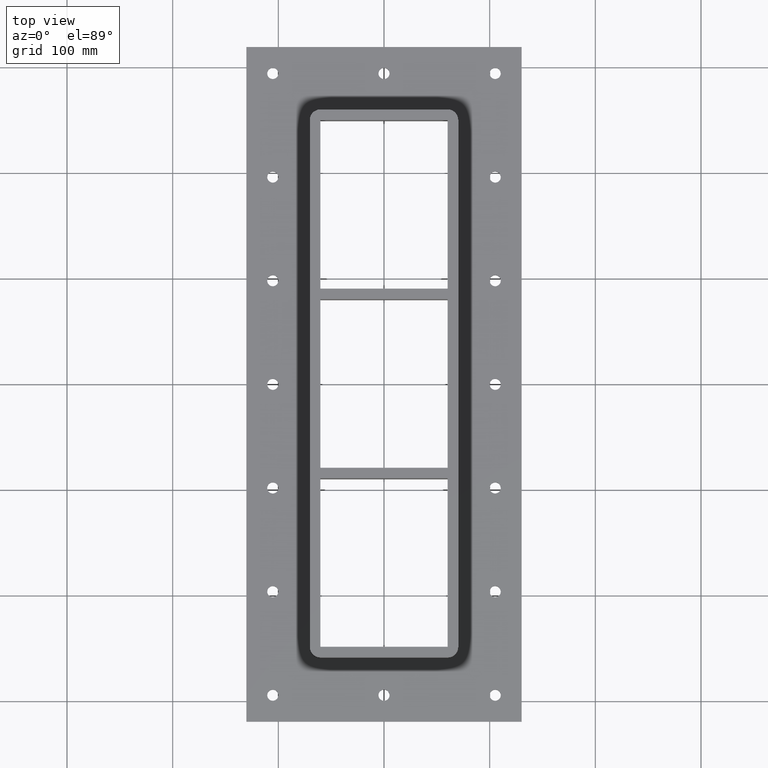
[diagram: clean part render]
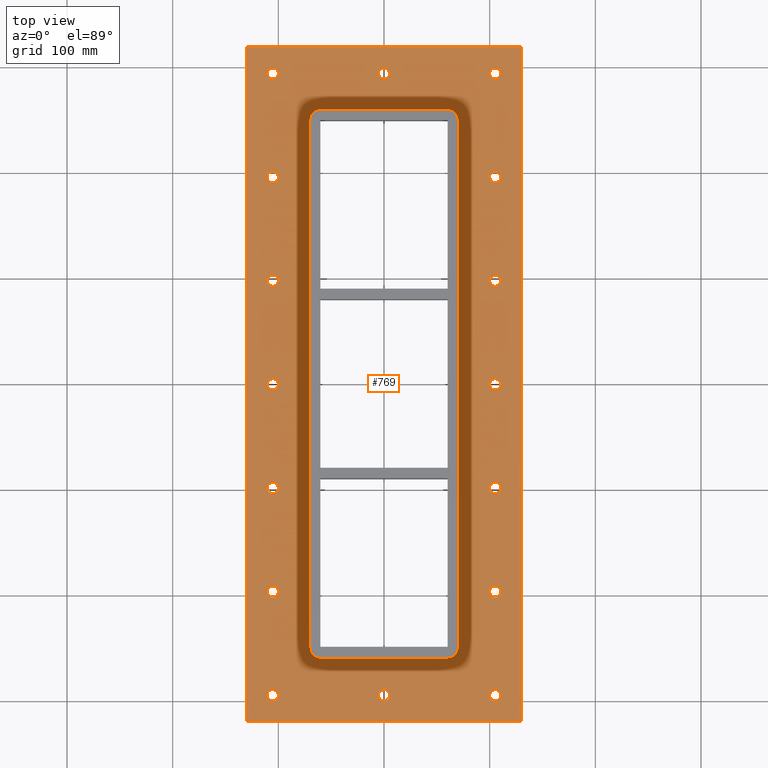
[diagram: same view with one face highlighted and labeled with its STEP entity id]
A machine part, top view. The second image highlights one B-rep face of the part: STEP entity #769.
In plain terms, the highlighted planar face has unit normal (0, 0, 1).
Its self-contained STEP definition (entity closure, byte-faithful):
#84=CARTESIAN_POINT('',(5.249999999999986,-294.25,-16.999999999999996));
#85=VERTEX_POINT('',#84);
#86=CARTESIAN_POINT('',(-1.776357E-014,-294.25,-17.000000000000028));
#87=DIRECTION('',(0.0,0.0,-1.0));
#88=DIRECTION('',(1.0,0.0,0.0));
#89=AXIS2_PLACEMENT_3D('',#86,#87,#88);
#90=CIRCLE('',#89,5.25);
#91=EDGE_CURVE('',#85,#85,#90,.T.);
#112=CARTESIAN_POINT('',(5.24999999999995,294.25,-16.999999999999996));
#113=VERTEX_POINT('',#112);
#114=CARTESIAN_POINT('',(-5.329071E-014,294.25,-17.000000000000028));
#115=DIRECTION('',(0.0,0.0,-1.0));
#116=DIRECTION('',(1.0,0.0,0.0));
#117=AXIS2_PLACEMENT_3D('',#114,#115,#116);
#118=CIRCLE('',#117,5.25);
#119=EDGE_CURVE('',#113,#113,#118,.T.);
#140=CARTESIAN_POINT('',(110.49999999999999,-196.16666666666663,-16.999999999999996));
#141=VERTEX_POINT('',#140);
#142=CARTESIAN_POINT('',(105.24999999999999,-196.16666666666663,-17.000000000000028));
#143=DIRECTION('',(0.0,0.0,-1.0));
#144=DIRECTION('',(1.0,0.0,0.0));
#145=AXIS2_PLACEMENT_3D('',#142,#143,#144);
#146=CIRCLE('',#145,5.25);
#147=EDGE_CURVE('',#141,#141,#146,.T.);
#168=CARTESIAN_POINT('',(110.49999999999999,-98.0833333333333,-16.999999999999996));
#169=VERTEX_POINT('',#168);
#170=CARTESIAN_POINT('',(105.24999999999999,-98.0833333333333,-17.000000000000028));
#171=DIRECTION('',(0.0,0.0,-1.0));
#172=DIRECTION('',(1.0,0.0,0.0));
#173=AXIS2_PLACEMENT_3D('',#170,#171,#172);
#174=CIRCLE('',#173,5.25);
#175=EDGE_CURVE('',#169,#169,#174,.T.);
#196=CARTESIAN_POINT('',(110.49999999999999,3.552714E-014,-16.999999999999996));
#197=VERTEX_POINT('',#196);
#198=CARTESIAN_POINT('',(105.24999999999999,3.552714E-014,-17.000000000000028));
#199=DIRECTION('',(0.0,0.0,-1.0));
#200=DIRECTION('',(1.0,0.0,0.0));
#201=AXIS2_PLACEMENT_3D('',#198,#199,#200);
#202=CIRCLE('',#201,5.25);
#203=EDGE_CURVE('',#197,#197,#202,.T.);
#224=CARTESIAN_POINT('',(110.49999999999999,98.083333333333371,-16.999999999999996));
#225=VERTEX_POINT('',#224);
#226=CARTESIAN_POINT('',(105.24999999999999,98.083333333333371,-17.000000000000028));
#227=DIRECTION('',(0.0,0.0,-1.0));
#228=DIRECTION('',(1.0,0.0,0.0));
#229=AXIS2_PLACEMENT_3D('',#226,#227,#228);
#230=CIRCLE('',#229,5.25);
#231=EDGE_CURVE('',#225,#225,#230,.T.);
#252=CARTESIAN_POINT('',(110.49999999999999,196.16666666666671,-16.999999999999996));
#253=VERTEX_POINT('',#252);
#254=CARTESIAN_POINT('',(105.24999999999999,196.16666666666671,-17.000000000000028));
#255=DIRECTION('',(0.0,0.0,-1.0));
#256=DIRECTION('',(1.0,0.0,0.0));
#257=AXIS2_PLACEMENT_3D('',#254,#255,#256);
#258=CIRCLE('',#257,5.25);
#259=EDGE_CURVE('',#253,#253,#258,.T.);
#280=CARTESIAN_POINT('',(-100.00000000000001,196.16666666666671,-16.999999999999996));
#281=VERTEX_POINT('',#280);
#282=CARTESIAN_POINT('',(-105.25000000000003,196.16666666666671,-17.000000000000028));
#283=DIRECTION('',(0.0,0.0,-1.0));
#284=DIRECTION('',(1.0,0.0,0.0));
#285=AXIS2_PLACEMENT_3D('',#282,#283,#284);
#286=CIRCLE('',#285,5.25);
#287=EDGE_CURVE('',#281,#281,#286,.T.);
#308=CARTESIAN_POINT('',(-100.0,98.083333333333371,-16.999999999999996));
#309=VERTEX_POINT('',#308);
#310=CARTESIAN_POINT('',(-105.25,98.083333333333371,-17.000000000000028));
#311=DIRECTION('',(0.0,0.0,-1.0));
#312=DIRECTION('',(1.0,0.0,0.0));
#313=AXIS2_PLACEMENT_3D('',#310,#311,#312);
#314=CIRCLE('',#313,5.25);
#315=EDGE_CURVE('',#309,#309,#314,.T.);
#336=CARTESIAN_POINT('',(-99.999999999999972,3.552714E-014,-16.999999999999996));
#337=VERTEX_POINT('',#336);
#338=CARTESIAN_POINT('',(-105.24999999999997,3.552714E-014,-17.000000000000028));
#339=DIRECTION('',(0.0,0.0,-1.0));
#340=DIRECTION('',(1.0,0.0,0.0));
#341=AXIS2_PLACEMENT_3D('',#338,#339,#340);
#342=CIRCLE('',#341,5.25);
#343=EDGE_CURVE('',#337,#337,#342,.T.);
#364=CARTESIAN_POINT('',(-99.999999999999943,-98.0833333333333,-16.999999999999996));
#365=VERTEX_POINT('',#364);
#366=CARTESIAN_POINT('',(-105.24999999999994,-98.0833333333333,-17.000000000000028));
#367=DIRECTION('',(0.0,0.0,-1.0));
#368=DIRECTION('',(1.0,0.0,0.0));
#369=AXIS2_PLACEMENT_3D('',#366,#367,#368);
#370=CIRCLE('',#369,5.25);
#371=EDGE_CURVE('',#365,#365,#370,.T.);
#392=CARTESIAN_POINT('',(-99.999999999999929,-196.16666666666663,-16.999999999999996));
#393=VERTEX_POINT('',#392);
#394=CARTESIAN_POINT('',(-105.24999999999993,-196.16666666666663,-17.000000000000028));
#395=DIRECTION('',(0.0,0.0,-1.0));
#396=DIRECTION('',(1.0,0.0,0.0));
#397=AXIS2_PLACEMENT_3D('',#394,#395,#396);
#398=CIRCLE('',#397,5.25);
#399=EDGE_CURVE('',#393,#393,#398,.T.);
#420=CARTESIAN_POINT('',(-100.00000000000006,294.25,-16.999999999999996));
#421=VERTEX_POINT('',#420);
#422=CARTESIAN_POINT('',(-105.25000000000006,294.25,-17.000000000000028));
#423=DIRECTION('',(0.0,0.0,-1.0));
#424=DIRECTION('',(1.0,0.0,0.0));
#425=AXIS2_PLACEMENT_3D('',#422,#423,#424);
#426=CIRCLE('',#425,5.25);
#427=EDGE_CURVE('',#421,#421,#426,.T.);
#448=CARTESIAN_POINT('',(110.49999999999999,294.25000000000006,-16.999999999999996));
#449=VERTEX_POINT('',#448);
#450=CARTESIAN_POINT('',(105.24999999999999,294.25000000000006,-17.000000000000028));
#451=DIRECTION('',(0.0,0.0,-1.0));
#452=DIRECTION('',(1.0,0.0,0.0));
#453=AXIS2_PLACEMENT_3D('',#450,#451,#452);
#454=CIRCLE('',#453,5.25);
#455=EDGE_CURVE('',#449,#449,#454,.T.);
#476=CARTESIAN_POINT('',(110.49999999999999,-294.25,-16.999999999999996));
#477=VERTEX_POINT('',#476);
#478=CARTESIAN_POINT('',(105.24999999999999,-294.25,-17.000000000000028));
#479=DIRECTION('',(0.0,0.0,-1.0));
#480=DIRECTION('',(1.0,0.0,0.0));
#481=AXIS2_PLACEMENT_3D('',#478,#479,#480);
#482=CIRCLE('',#481,5.25);
#483=EDGE_CURVE('',#477,#477,#482,.T.);
#504=CARTESIAN_POINT('',(-99.999999999999915,-294.25,-16.999999999999996));
#505=VERTEX_POINT('',#504);
#506=CARTESIAN_POINT('',(-105.24999999999991,-294.25,-17.000000000000028));
#507=DIRECTION('',(0.0,0.0,-1.0));
#508=DIRECTION('',(1.0,0.0,0.0));
#509=AXIS2_PLACEMENT_3D('',#506,#507,#508);
#510=CIRCLE('',#509,5.25);
#511=EDGE_CURVE('',#505,#505,#510,.T.);
#531=CARTESIAN_POINT('',(-130.24999999999991,-319.25,-17.0));
#532=VERTEX_POINT('',#531);
#539=CARTESIAN_POINT('',(-130.25000000000006,319.25,-17.0));
#540=VERTEX_POINT('',#539);
#541=CARTESIAN_POINT('',(-130.25000000000006,319.25,-17.0));
#542=DIRECTION('',(0.0,-1.0,0.0));
#543=VECTOR('',#542,638.5);
#544=LINE('',#541,#543);
#545=EDGE_CURVE('',#540,#532,#544,.T.);
#570=CARTESIAN_POINT('',(130.25,319.25000000000006,-17.0));
#571=VERTEX_POINT('',#570);
#572=CARTESIAN_POINT('',(130.25,319.25000000000006,-17.0));
#573=DIRECTION('',(-1.0,0.0,0.0));
#574=VECTOR('',#573,260.50000000000006);
#575=LINE('',#572,#574);
#576=EDGE_CURVE('',#571,#540,#575,.T.);
#601=CARTESIAN_POINT('',(130.25,-319.25,-17.0));
#602=VERTEX_POINT('',#601);
#603=CARTESIAN_POINT('',(130.25,-319.24999999999994,-17.0));
#604=DIRECTION('',(0.0,1.0,0.0));
#605=VECTOR('',#604,638.5);
#606=LINE('',#603,#605);
#607=EDGE_CURVE('',#602,#571,#606,.T.);
#630=CARTESIAN_POINT('',(-130.24999999999989,-319.25000000000006,-17.0));
#631=DIRECTION('',(1.0,0.0,0.0));
#632=VECTOR('',#631,260.49999999999989);
#633=LINE('',#630,#632);
#634=EDGE_CURVE('',#532,#602,#633,.T.);
#640=CARTESIAN_POINT('',(0.0,5.055405E-014,-16.999999999999996));
#641=DIRECTION('',(0.0,0.0,1.0));
#642=DIRECTION('',(1.0,0.0,0.0));
#643=AXIS2_PLACEMENT_3D('',#640,#641,#642);
#644=PLANE('',#643);
#645=ORIENTED_EDGE('',*,*,#634,.T.);
#646=ORIENTED_EDGE('',*,*,#607,.T.);
#647=ORIENTED_EDGE('',*,*,#576,.T.);
#648=ORIENTED_EDGE('',*,*,#545,.T.);
#649=EDGE_LOOP('',(#645,#646,#647,#648));
#650=FACE_OUTER_BOUND('',#649,.T.);
#651=ORIENTED_EDGE('',*,*,#91,.T.);
#652=EDGE_LOOP('',(#651));
#653=FACE_BOUND('',#652,.T.);
#654=ORIENTED_EDGE('',*,*,#119,.T.);
#655=EDGE_LOOP('',(#654));
#656=FACE_BOUND('',#655,.T.);
#657=ORIENTED_EDGE('',*,*,#147,.T.);
#658=EDGE_LOOP('',(#657));
#659=FACE_BOUND('',#658,.T.);
#660=ORIENTED_EDGE('',*,*,#175,.T.);
#661=EDGE_LOOP('',(#660));
#662=FACE_BOUND('',#661,.T.);
#663=ORIENTED_EDGE('',*,*,#203,.T.);
#664=EDGE_LOOP('',(#663));
#665=FACE_BOUND('',#664,.T.);
#666=ORIENTED_EDGE('',*,*,#231,.T.);
#667=EDGE_LOOP('',(#666));
#668=FACE_BOUND('',#667,.T.);
#669=ORIENTED_EDGE('',*,*,#259,.T.);
#670=EDGE_LOOP('',(#669));
#671=FACE_BOUND('',#670,.T.);
#672=ORIENTED_EDGE('',*,*,#287,.T.);
#673=EDGE_LOOP('',(#672));
#674=FACE_BOUND('',#673,.T.);
#675=ORIENTED_EDGE('',*,*,#315,.T.);
#676=EDGE_LOOP('',(#675));
#677=FACE_BOUND('',#676,.T.);
#678=ORIENTED_EDGE('',*,*,#343,.T.);
#679=EDGE_LOOP('',(#678));
#680=FACE_BOUND('',#679,.T.);
#681=ORIENTED_EDGE('',*,*,#371,.T.);
#682=EDGE_LOOP('',(#681));
#683=FACE_BOUND('',#682,.T.);
#684=ORIENTED_EDGE('',*,*,#399,.T.);
#685=EDGE_LOOP('',(#684));
#686=FACE_BOUND('',#685,.T.);
#687=ORIENTED_EDGE('',*,*,#427,.T.);
#688=EDGE_LOOP('',(#687));
#689=FACE_BOUND('',#688,.T.);
#690=ORIENTED_EDGE('',*,*,#455,.T.);
#691=EDGE_LOOP('',(#690));
#692=FACE_BOUND('',#691,.T.);
#693=ORIENTED_EDGE('',*,*,#483,.T.);
#694=EDGE_LOOP('',(#693));
#695=FACE_BOUND('',#694,.T.);
#696=ORIENTED_EDGE('',*,*,#511,.T.);
#697=EDGE_LOOP('',(#696));
#698=FACE_BOUND('',#697,.T.);
#699=CARTESIAN_POINT('',(70.249999999999915,249.25,-17.0));
#700=VERTEX_POINT('',#699);
#701=CARTESIAN_POINT('',(60.249999999999915,259.25000000000006,-17.0));
#702=VERTEX_POINT('',#701);
#703=CARTESIAN_POINT('',(60.249999999999915,249.25000000000011,-16.999999999999996));
#704=DIRECTION('',(0.0,0.0,1.0));
#705=DIRECTION('',(0.707106781186547,0.707106781186547,0.0));
#706=AXIS2_PLACEMENT_3D('',#703,#704,#705);
#707=CIRCLE('',#706,9.999999999999998);
#708=EDGE_CURVE('',#700,#702,#707,.T.);
#709=ORIENTED_EDGE('',*,*,#708,.F.);
#710=CARTESIAN_POINT('',(70.249999999999986,-249.25000000000006,-17.0));
#711=VERTEX_POINT('',#710);
#712=CARTESIAN_POINT('',(70.249999999999986,-249.25000000000006,-16.999999999999996));
#713=DIRECTION('',(0.0,1.0,0.0));
#714=VECTOR('',#713,498.50000000000006);
#715=LINE('',#712,#714);
#716=EDGE_CURVE('',#711,#700,#715,.T.);
#717=ORIENTED_EDGE('',*,*,#716,.F.);
#718=CARTESIAN_POINT('',(60.250000000000057,-259.25000000000006,-17.0));
#719=VERTEX_POINT('',#718);
#720=CARTESIAN_POINT('',(60.249999999999986,-249.24999999999989,-16.999999999999996));
#721=DIRECTION('',(0.0,0.0,1.0));
#722=DIRECTION('',(0.707106781186547,-0.707106781186547,0.0));
#723=AXIS2_PLACEMENT_3D('',#720,#721,#722);
#724=CIRCLE('',#723,9.999999999999998);
#725=EDGE_CURVE('',#719,#711,#724,.T.);
#726=ORIENTED_EDGE('',*,*,#725,.F.);
#727=CARTESIAN_POINT('',(-60.249999999999915,-259.25000000000006,-17.0));
#728=VERTEX_POINT('',#727);
#729=CARTESIAN_POINT('',(-60.249999999999915,-259.24999999999989,-16.999999999999996));
#730=DIRECTION('',(1.0,0.0,0.0));
#731=VECTOR('',#730,120.49999999999999);
#732=LINE('',#729,#731);
#733=EDGE_CURVE('',#728,#719,#732,.T.);
#734=ORIENTED_EDGE('',*,*,#733,.F.);
#735=CARTESIAN_POINT('',(-70.249999999999986,-249.25000000000006,-17.0));
#736=VERTEX_POINT('',#735);
#737=CARTESIAN_POINT('',(-60.249999999999915,-249.24999999999983,-16.999999999999996));
#738=DIRECTION('',(0.0,0.0,1.0));
#739=DIRECTION('',(-0.707106781186547,-0.707106781186547,0.0));
#740=AXIS2_PLACEMENT_3D('',#737,#738,#739);
#741=CIRCLE('',#740,9.999999999999998);
#742=EDGE_CURVE('',#736,#728,#741,.T.);
#743=ORIENTED_EDGE('',*,*,#742,.F.);
#744=CARTESIAN_POINT('',(-70.249999999999986,249.25,-17.0));
#745=VERTEX_POINT('',#744);
#746=CARTESIAN_POINT('',(-70.250000000000114,249.25,-16.999999999999996));
#747=DIRECTION('',(0.0,-1.0,0.0));
#748=VECTOR('',#747,498.50000000000006);
#749=LINE('',#746,#748);
#750=EDGE_CURVE('',#745,#736,#749,.T.);
#751=ORIENTED_EDGE('',*,*,#750,.F.);
#752=CARTESIAN_POINT('',(-60.250000000000057,259.25000000000006,-17.0));
#753=VERTEX_POINT('',#752);
#754=CARTESIAN_POINT('',(-60.250000000000128,249.25000000000011,-16.999999999999996));
#755=DIRECTION('',(0.0,0.0,1.0));
#756=DIRECTION('',(-0.707106781186547,0.707106781186547,0.0));
#757=AXIS2_PLACEMENT_3D('',#754,#755,#756);
#758=CIRCLE('',#757,9.999999999999998);
#759=EDGE_CURVE('',#753,#745,#758,.T.);
#760=ORIENTED_EDGE('',*,*,#759,.F.);
#761=CARTESIAN_POINT('',(60.249999999999915,259.25000000000011,-16.999999999999996));
#762=DIRECTION('',(-1.0,0.0,0.0));
#763=VECTOR('',#762,120.49999999999997);
#764=LINE('',#761,#763);
#765=EDGE_CURVE('',#702,#753,#764,.T.);
#766=ORIENTED_EDGE('',*,*,#765,.F.);
#767=EDGE_LOOP('',(#709,#717,#726,#734,#743,#751,#760,#766));
#768=FACE_BOUND('',#767,.T.);
#769=ADVANCED_FACE('',(#650,#653,#656,#659,#662,#665,#668,#671,#674,#677,#680,#683,#686,#689,#692,#695,#698,#768),#644,.T.);